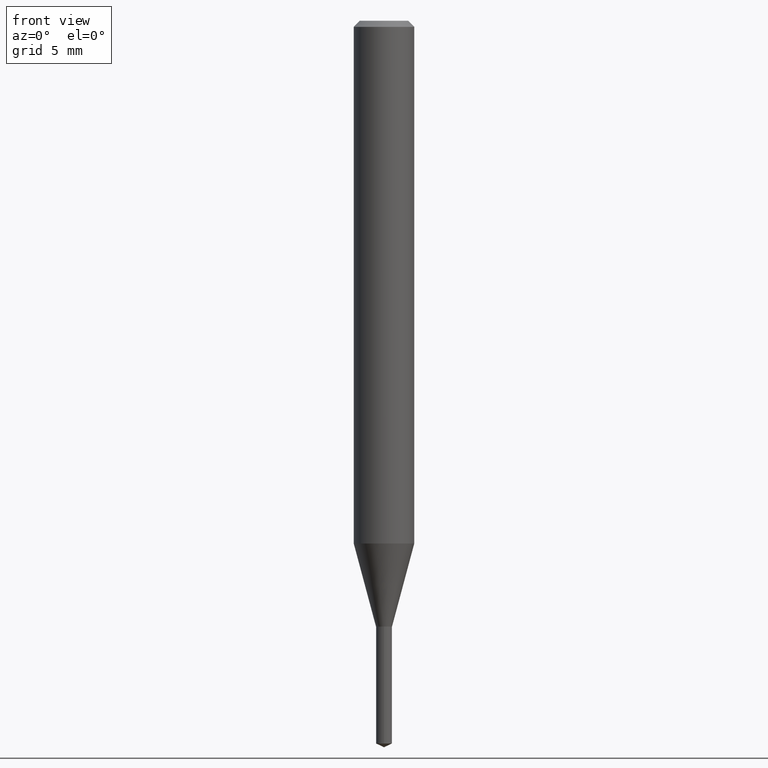
[diagram: clean part render]
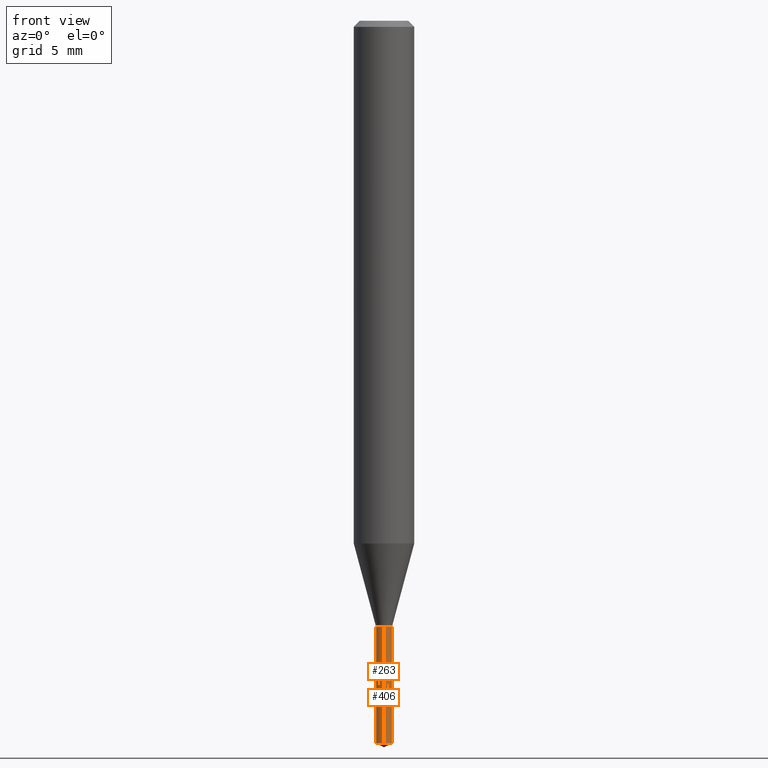
[diagram: same view with one multi-face feature highlighted, each face labeled with its STEP entity id]
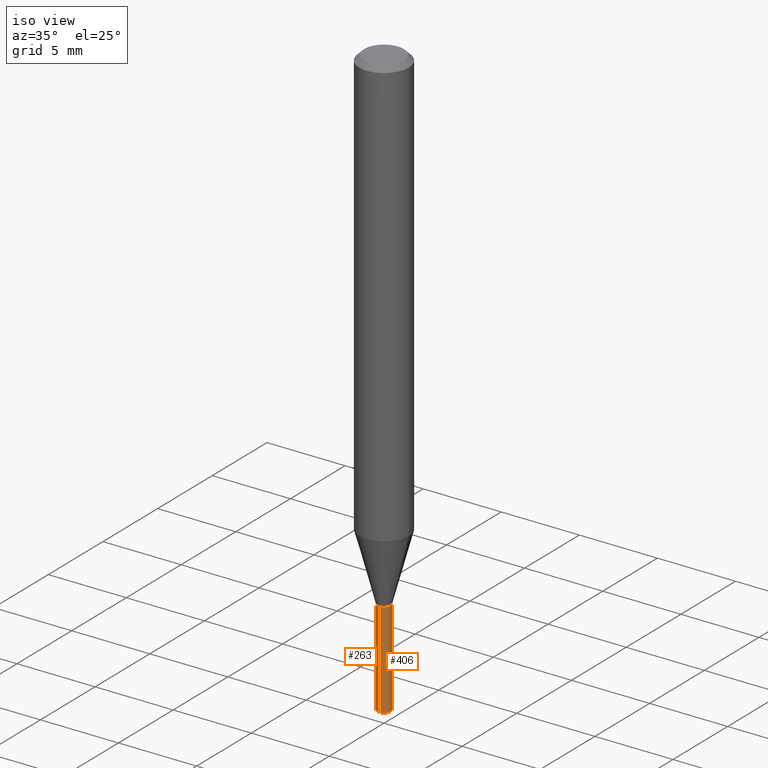
[diagram: same view with one multi-face feature highlighted, each face labeled with its STEP entity id]
A machine part, front view. The highlighted faces form ONE feature: a constant-radius fillet chain: 2 tangent blend faces with common blend radius 0.4191 mm. The faces share edges in the B-rep.
A second angle (iso view) of the same feature is appended — it is thin or edge-on in the first view.
Their STEP definitions:
[1] entity #406 (Cylinder):
#2 = DIRECTION ( 'NONE',  ( -2.442957897581693293E-29, 3.495077102875318834E-15, 1.000000000000000000 ) ) ;
#23 = DIRECTION ( 'NONE',  ( -6.982962677686266711E-15, -1.000000000000000000, 0.000000000000000000 ) ) ;
#29 = LINE ( 'NONE', #191, #251 ) ;
#35 = VERTEX_POINT ( 'NONE', #201 ) ;
#42 = CARTESIAN_POINT ( 'NONE',  ( 2.690015686803650369E-29, -3.840629472727460101E-15, -1.100000000000000089 ) ) ;
#51 = VECTOR ( 'NONE', #224, 39.37007874015748143 ) ;
#61 = LINE ( 'NONE', #462, #51 ) ;
#72 = DIRECTION ( 'NONE',  ( -2.442957897581693293E-29, 3.495077102875319228E-15, 1.000000000000000000 ) ) ;
#125 = DIRECTION ( 'NONE',  ( -2.442957897581693293E-29, 3.495077102875318834E-15, 1.000000000000000000 ) ) ;
#129 = CARTESIAN_POINT ( 'NONE',  ( 3.648402541229150417E-29, -5.211768923765523479E-15, -1.492305923640442566 ) ) ;
#159 = CARTESIAN_POINT ( 'NONE',  ( -1.152188841817869415E-16, -0.01650000000000521883, -1.492305923640442566 ) ) ;
#162 = EDGE_CURVE ( 'NONE', #399, #35, #29, .T. ) ;
#178 = AXIS2_PLACEMENT_3D ( 'NONE', #129, #2, #310 ) ;
#183 = EDGE_CURVE ( 'NONE', #399, #278, #485, .T. ) ;
#191 = CARTESIAN_POINT ( 'NONE',  ( -1.152188841817965065E-16, -0.01650000000000384492, -1.100000000000000089 ) ) ;
#201 = CARTESIAN_POINT ( 'NONE',  ( -1.152188841817964818E-16, -0.01650000000000384145, -1.100000000000000089 ) ) ;
#202 = EDGE_CURVE ( 'NONE', #278, #330, #61, .T. ) ;
#205 = DIRECTION ( 'NONE',  ( -6.982962677686265133E-15, -1.000000000000000000, 0.000000000000000000 ) ) ;
#224 = DIRECTION ( 'NONE',  ( -2.442957897581693293E-29, 3.495077102875319228E-15, 1.000000000000000000 ) ) ;
#226 = CARTESIAN_POINT ( 'NONE',  ( 2.690015686803650369E-29, -3.840629472727460101E-15, -1.100000000000000089 ) ) ;
#251 = VECTOR ( 'NONE', #72, 39.37007874015748143 ) ;
#269 = FACE_OUTER_BOUND ( 'NONE', #453, .T. ) ;
#278 = VERTEX_POINT ( 'NONE', #344 ) ;
#294 = ORIENTED_EDGE ( 'NONE', *, *, #183, .T. ) ;
#297 = CARTESIAN_POINT ( 'NONE',  ( 1.172395514004530950E-16, 0.01649999999999616010, -1.100000000000000089 ) ) ;
#310 = DIRECTION ( 'NONE',  ( -6.982962677686266711E-15, -1.000000000000000000, 0.000000000000000000 ) ) ;
#330 = VERTEX_POINT ( 'NONE', #297 ) ;
#344 = CARTESIAN_POINT ( 'NONE',  ( 1.172395514004530457E-16, 0.01649999999999479314, -1.492305923640442566 ) ) ;
#369 = DIRECTION ( 'NONE',  ( -2.442957897581693293E-29, 3.495077102875318834E-15, 1.000000000000000000 ) ) ;
#399 = VERTEX_POINT ( 'NONE', #159 ) ;
#404 = CYLINDRICAL_SURFACE ( 'NONE', #410, 0.01650000000000000078 ) ;
#406 = ADVANCED_FACE ( 'NONE', ( #269 ), #404, .T. ) ;
#410 = AXIS2_PLACEMENT_3D ( 'NONE', #226, #369, #23 ) ;
#430 = AXIS2_PLACEMENT_3D ( 'NONE', #42, #125, #205 ) ;
#431 = ORIENTED_EDGE ( 'NONE', *, *, #162, .F. ) ;
#450 = EDGE_CURVE ( 'NONE', #35, #330, #467, .T. ) ;
#453 = EDGE_LOOP ( 'NONE', ( #294, #468, #456, #431 ) ) ;
#456 = ORIENTED_EDGE ( 'NONE', *, *, #450, .F. ) ;
#462 = CARTESIAN_POINT ( 'NONE',  ( 1.172395514004434314E-16, 0.01649999999999616010, -1.100000000000000089 ) ) ;
#467 = CIRCLE ( 'NONE', #430, 0.01650000000000000078 ) ;
#468 = ORIENTED_EDGE ( 'NONE', *, *, #202, .T. ) ;
#485 = CIRCLE ( 'NONE', #178, 0.01650000000000000078 ) ;
[2] entity #263 (Cylinder):
#29 = LINE ( 'NONE', #191, #251 ) ;
#35 = VERTEX_POINT ( 'NONE', #201 ) ;
#45 = DIRECTION ( 'NONE',  ( -2.442957897581693293E-29, 3.495077102875318834E-15, 1.000000000000000000 ) ) ;
#51 = VECTOR ( 'NONE', #224, 39.37007874015748143 ) ;
#61 = LINE ( 'NONE', #462, #51 ) ;
#72 = DIRECTION ( 'NONE',  ( -2.442957897581693293E-29, 3.495077102875319228E-15, 1.000000000000000000 ) ) ;
#76 = CARTESIAN_POINT ( 'NONE',  ( 2.690015686803650369E-29, -3.840629472727460101E-15, -1.100000000000000089 ) ) ;
#84 = DIRECTION ( 'NONE',  ( -6.982962677686266711E-15, -1.000000000000000000, 0.000000000000000000 ) ) ;
#153 = AXIS2_PLACEMENT_3D ( 'NONE', #387, #45, #84 ) ;
#159 = CARTESIAN_POINT ( 'NONE',  ( -1.152188841817869415E-16, -0.01650000000000521883, -1.492305923640442566 ) ) ;
#162 = EDGE_CURVE ( 'NONE', #399, #35, #29, .T. ) ;
#182 = ORIENTED_EDGE ( 'NONE', *, *, #377, .F. ) ;
#191 = CARTESIAN_POINT ( 'NONE',  ( -1.152188841817965065E-16, -0.01650000000000384492, -1.100000000000000089 ) ) ;
#200 = CYLINDRICAL_SURFACE ( 'NONE', #222, 0.01650000000000000078 ) ;
#201 = CARTESIAN_POINT ( 'NONE',  ( -1.152188841817964818E-16, -0.01650000000000384145, -1.100000000000000089 ) ) ;
#202 = EDGE_CURVE ( 'NONE', #278, #330, #61, .T. ) ;
#222 = AXIS2_PLACEMENT_3D ( 'NONE', #76, #302, #272 ) ;
#224 = DIRECTION ( 'NONE',  ( -2.442957897581693293E-29, 3.495077102875319228E-15, 1.000000000000000000 ) ) ;
#234 = DIRECTION ( 'NONE',  ( -2.442957897581693293E-29, 3.495077102875318834E-15, 1.000000000000000000 ) ) ;
#239 = CIRCLE ( 'NONE', #153, 0.01650000000000000078 ) ;
#251 = VECTOR ( 'NONE', #72, 39.37007874015748143 ) ;
#263 = ADVANCED_FACE ( 'NONE', ( #407 ), #200, .T. ) ;
#272 = DIRECTION ( 'NONE',  ( -6.982962677686266711E-15, -1.000000000000000000, 0.000000000000000000 ) ) ;
#278 = VERTEX_POINT ( 'NONE', #344 ) ;
#297 = CARTESIAN_POINT ( 'NONE',  ( 1.172395514004530950E-16, 0.01649999999999616010, -1.100000000000000089 ) ) ;
#302 = DIRECTION ( 'NONE',  ( -2.442957897581693293E-29, 3.495077102875318834E-15, 1.000000000000000000 ) ) ;
#312 = AXIS2_PLACEMENT_3D ( 'NONE', #409, #234, #484 ) ;
#323 = EDGE_LOOP ( 'NONE', ( #327, #364, #460, #182 ) ) ;
#327 = ORIENTED_EDGE ( 'NONE', *, *, #202, .F. ) ;
#330 = VERTEX_POINT ( 'NONE', #297 ) ;
#344 = CARTESIAN_POINT ( 'NONE',  ( 1.172395514004530457E-16, 0.01649999999999479314, -1.492305923640442566 ) ) ;
#364 = ORIENTED_EDGE ( 'NONE', *, *, #457, .T. ) ;
#365 = CIRCLE ( 'NONE', #312, 0.01650000000000000078 ) ;
#377 = EDGE_CURVE ( 'NONE', #330, #35, #365, .T. ) ;
#387 = CARTESIAN_POINT ( 'NONE',  ( 3.648402541229150417E-29, -5.211768923765523479E-15, -1.492305923640442566 ) ) ;
#399 = VERTEX_POINT ( 'NONE', #159 ) ;
#407 = FACE_OUTER_BOUND ( 'NONE', #323, .T. ) ;
#409 = CARTESIAN_POINT ( 'NONE',  ( 2.690015686803650369E-29, -3.840629472727460101E-15, -1.100000000000000089 ) ) ;
#457 = EDGE_CURVE ( 'NONE', #278, #399, #239, .T. ) ;
#460 = ORIENTED_EDGE ( 'NONE', *, *, #162, .T. ) ;
#462 = CARTESIAN_POINT ( 'NONE',  ( 1.172395514004434314E-16, 0.01649999999999616010, -1.100000000000000089 ) ) ;
#484 = DIRECTION ( 'NONE',  ( -6.982962677686265133E-15, -1.000000000000000000, 0.000000000000000000 ) ) ;